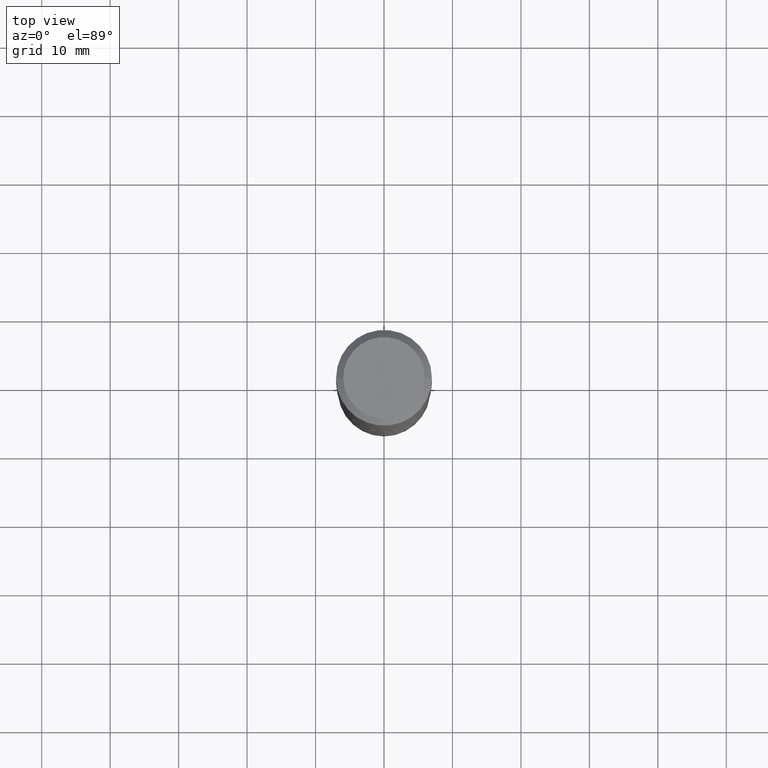
[diagram: clean part render]
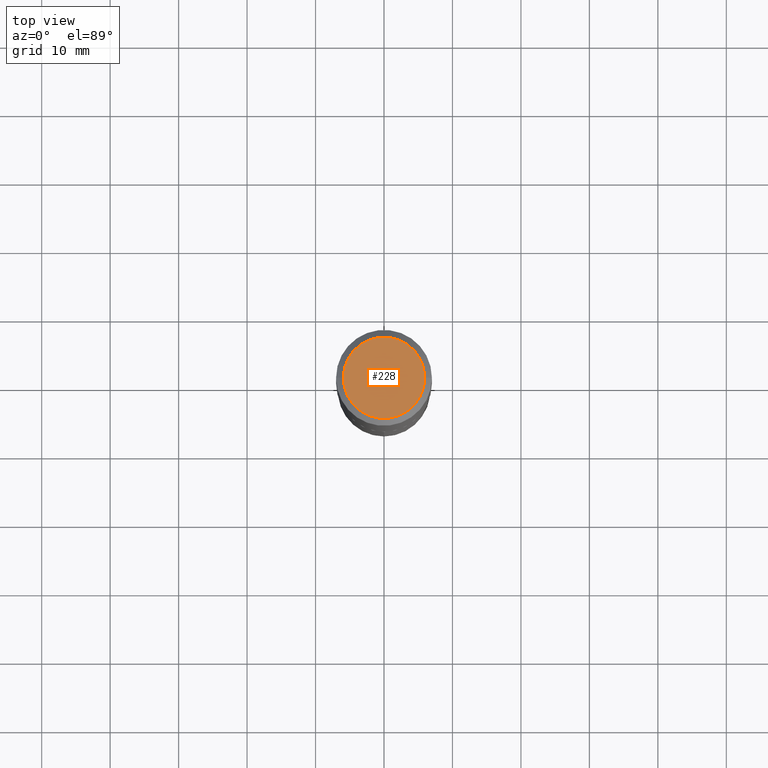
[diagram: same view with one face highlighted and labeled with its STEP entity id]
A machine part, top view. The second image highlights one B-rep face of the part: STEP entity #228.
In plain terms, the highlighted planar face has unit normal (0, -0, -1).
Its self-contained STEP definition (entity closure, byte-faithful):
#9 = DIRECTION ( 'NONE',  ( -1.000000000000000000, 6.982962677686265922E-15, -4.876176775795935793E-29 ) ) ;
#12 = EDGE_CURVE ( 'NONE', #53, #420, #359, .T. ) ;
#30 = DIRECTION ( 'NONE',  ( -2.445468806185136597E-29, 3.491481338843145583E-15, 1.000000000000000000 ) ) ;
#33 = PLANE ( 'NONE',  #380 ) ;
#53 = VERTEX_POINT ( 'NONE', #466 ) ;
#60 = EDGE_CURVE ( 'NONE', #420, #53, #256, .T. ) ;
#69 = DIRECTION ( 'NONE',  ( 1.000000000000000000, -6.982962677686267499E-15, 4.876157962347795834E-29 ) ) ;
#109 = DIRECTION ( 'NONE',  ( 1.000000000000000000, -6.982962677686267499E-15, 4.876157962347795834E-29 ) ) ;
#140 = ORIENTED_EDGE ( 'NONE', *, *, #12, .T. ) ;
#158 = AXIS2_PLACEMENT_3D ( 'NONE', #426, #292, #109 ) ;
#168 = EDGE_LOOP ( 'NONE', ( #201, #140 ) ) ;
#201 = ORIENTED_EDGE ( 'NONE', *, *, #60, .T. ) ;
#227 = DIRECTION ( 'NONE',  ( 2.438088387897960049E-29, -3.491481338843145188E-15, -1.000000000000000000 ) ) ;
#228 = ADVANCED_FACE ( 'NONE', ( #368 ), #33, .F. ) ;
#256 = CIRCLE ( 'NONE', #158, 0.2342600000000000238 ) ;
#270 = AXIS2_PLACEMENT_3D ( 'NONE', #317, #30, #69 ) ;
#291 = CARTESIAN_POINT ( 'NONE',  ( -5.014852121625167883E-47, 7.159879756154482429E-33, 2.050671065172242981E-18 ) ) ;
#292 = DIRECTION ( 'NONE',  ( -2.445468806185136597E-29, 3.491481338843145583E-15, 1.000000000000000000 ) ) ;
#317 = CARTESIAN_POINT ( 'NONE',  ( -1.002970424325033577E-46, 1.431975951230896486E-32, 4.101342130344485961E-18 ) ) ;
#359 = CIRCLE ( 'NONE', #270, 0.2342600000000000238 ) ;
#368 = FACE_OUTER_BOUND ( 'NONE', #168, .T. ) ;
#380 = AXIS2_PLACEMENT_3D ( 'NONE', #291, #227, #9 ) ;
#419 = CARTESIAN_POINT ( 'NONE',  ( -0.2342600000000000238, 1.707997756148671759E-15, 4.101342130332794026E-18 ) ) ;
#420 = VERTEX_POINT ( 'NONE', #419 ) ;
#426 = CARTESIAN_POINT ( 'NONE',  ( -1.002970424325033577E-46, 1.431975951230896486E-32, 4.101342130344485961E-18 ) ) ;
#466 = CARTESIAN_POINT ( 'NONE',  ( 0.2342600000000000238, -1.821115673845785155E-15, 4.101342130356573868E-18 ) ) ;